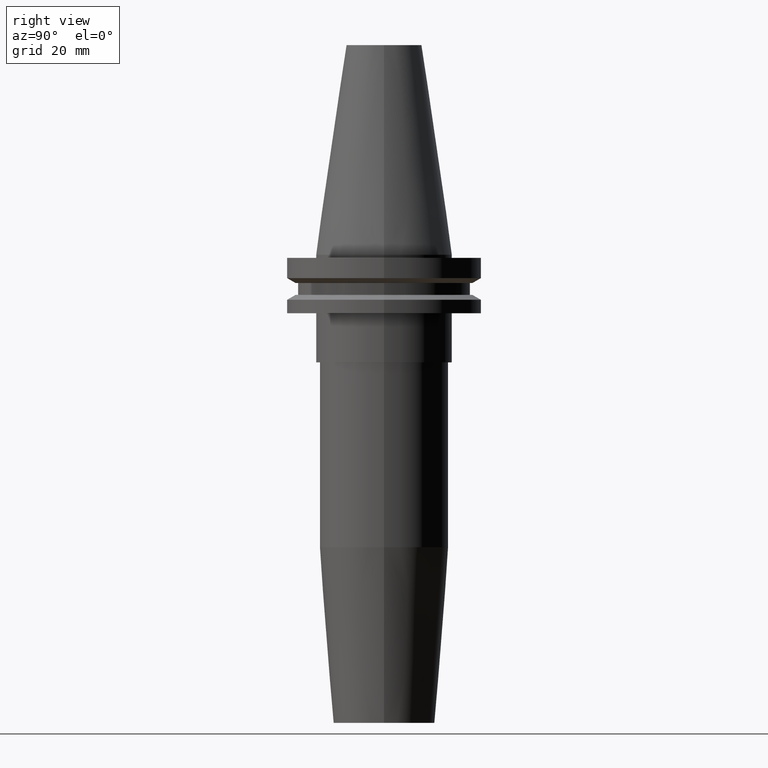
[diagram: clean part render]
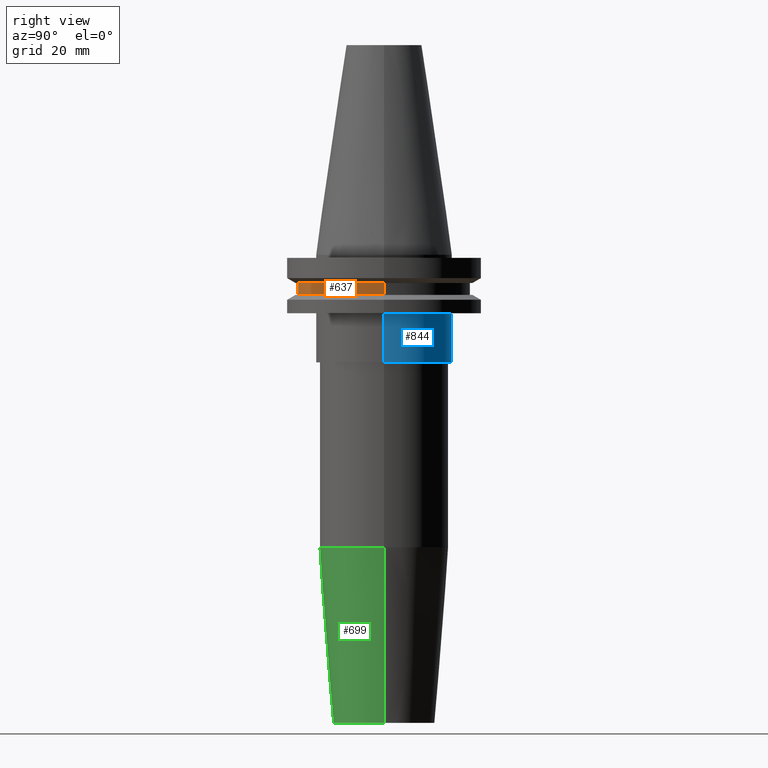
[diagram: same view with three faces highlighted in distinct colors, each labeled with its STEP entity id]
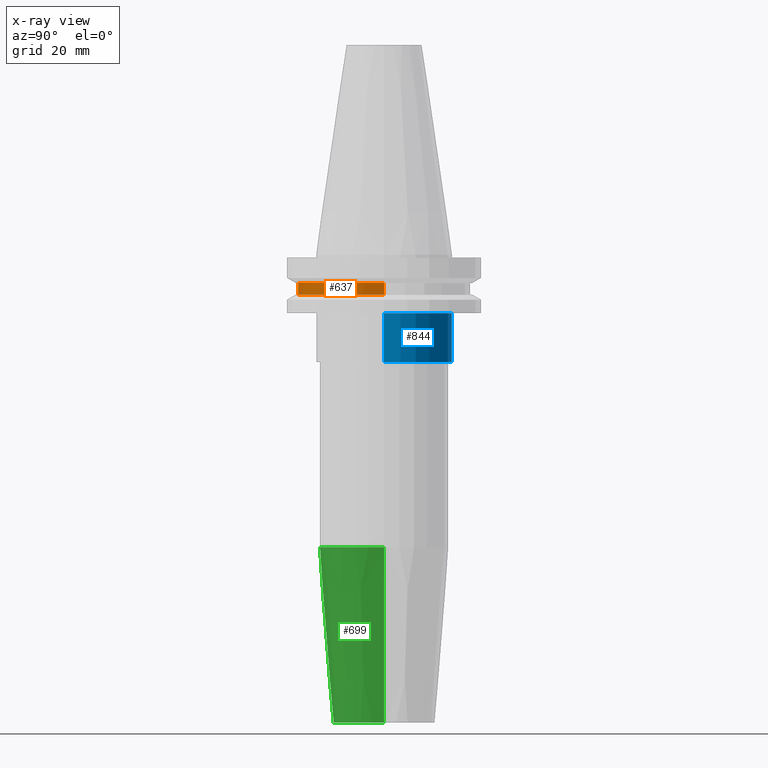
[diagram: x-ray of the same camera — body ghosted, the three highlighted faces saturated]
A machine part, right view with three faces highlighted in distinct colors.
The next image is the same camera in x-ray (body ghosted, the three faces saturated) — at least one of them is partly hidden behind the body in this view.
Their STEP definitions:

[orange] entity #637 — the highlighted cylindrical surface (partial cylindrical patch) has radius 28.18 mm, axis along (-0, -0, 1).
#1 = DIRECTION ( 'NONE',  ( -0.000000000000000000, -0.000000000000000000, 1.000000000000000000 ) ) ;
#6 = CYLINDRICAL_SURFACE ( 'NONE', #172, 28.17999999999999972 ) ;
#13 = CARTESIAN_POINT ( 'NONE',  ( 0.000000000000000000, 0.000000000000000000, 68.25000000000000000 ) ) ;
#14 = EDGE_LOOP ( 'NONE', ( #426, #348, #553, #271 ) ) ;
#122 = CARTESIAN_POINT ( 'NONE',  ( 28.17999999999999972, 0.000000000000000000, 68.25000000000000000 ) ) ;
#123 = VECTOR ( 'NONE', #1, 1000.000000000000000 ) ;
#130 = FACE_OUTER_BOUND ( 'NONE', #14, .T. ) ;
#140 = DIRECTION ( 'NONE',  ( -0.000000000000000000, -0.000000000000000000, 1.000000000000000000 ) ) ;
#172 = AXIS2_PLACEMENT_3D ( 'NONE', #13, #140, #619 ) ;
#220 = VERTEX_POINT ( 'NONE', #650 ) ;
#255 = AXIS2_PLACEMENT_3D ( 'NONE', #557, #678, #274 ) ;
#265 = CIRCLE ( 'NONE', #255, 28.17999999999999972 ) ;
#271 = ORIENTED_EDGE ( 'NONE', *, *, #542, .F. ) ;
#274 = DIRECTION ( 'NONE',  ( 1.000000000000000000, 0.000000000000000000, 0.000000000000000000 ) ) ;
#316 = DIRECTION ( 'NONE',  ( -0.000000000000000000, -0.000000000000000000, 1.000000000000000000 ) ) ;
#326 = EDGE_CURVE ( 'NONE', #757, #220, #661, .T. ) ;
#348 = ORIENTED_EDGE ( 'NONE', *, *, #326, .T. ) ;
#386 = CARTESIAN_POINT ( 'NONE',  ( 0.000000000000000000, 0.000000000000000000, -13.05499999999999794 ) ) ;
#426 = ORIENTED_EDGE ( 'NONE', *, *, #766, .F. ) ;
#446 = VERTEX_POINT ( 'NONE', #729 ) ;
#497 = EDGE_CURVE ( 'NONE', #220, #446, #731, .T. ) ;
#542 = EDGE_CURVE ( 'NONE', #691, #446, #265, .T. ) ;
#553 = ORIENTED_EDGE ( 'NONE', *, *, #497, .T. ) ;
#557 = CARTESIAN_POINT ( 'NONE',  ( 0.000000000000000000, 0.000000000000000000, -9.204999999999991189 ) ) ;
#563 = LINE ( 'NONE', #808, #837 ) ;
#586 = DIRECTION ( 'NONE',  ( 1.000000000000000000, 0.000000000000000000, 0.000000000000000000 ) ) ;
#619 = DIRECTION ( 'NONE',  ( 1.000000000000000000, 0.000000000000000000, 0.000000000000000000 ) ) ;
#629 = CARTESIAN_POINT ( 'NONE',  ( -28.17999999999999972, 3.451054679997241634E-15, -9.204999999999991189 ) ) ;
#637 = ADVANCED_FACE ( 'NONE', ( #130 ), #6, .T. ) ;
#650 = CARTESIAN_POINT ( 'NONE',  ( 28.17999999999999972, 0.000000000000000000, -13.05499999999999794 ) ) ;
#661 = CIRCLE ( 'NONE', #706, 28.17999999999999972 ) ;
#678 = DIRECTION ( 'NONE',  ( -0.000000000000000000, -0.000000000000000000, 1.000000000000000000 ) ) ;
#691 = VERTEX_POINT ( 'NONE', #629 ) ;
#706 = AXIS2_PLACEMENT_3D ( 'NONE', #386, #316, #586 ) ;
#729 = CARTESIAN_POINT ( 'NONE',  ( 28.17999999999999972, 0.000000000000000000, -9.204999999999991189 ) ) ;
#731 = LINE ( 'NONE', #122, #123 ) ;
#753 = CARTESIAN_POINT ( 'NONE',  ( -28.17999999999999972, 3.451054679997241634E-15, -13.05499999999999794 ) ) ;
#757 = VERTEX_POINT ( 'NONE', #753 ) ;
#759 = DIRECTION ( 'NONE',  ( -0.000000000000000000, -0.000000000000000000, 1.000000000000000000 ) ) ;
#766 = EDGE_CURVE ( 'NONE', #757, #691, #563, .T. ) ;
#808 = CARTESIAN_POINT ( 'NONE',  ( -28.17999999999999972, 3.451054679997241634E-15, 68.25000000000000000 ) ) ;
#837 = VECTOR ( 'NONE', #759, 1000.000000000000000 ) ;

[blue] entity #844 — the highlighted cylindrical surface (partial cylindrical patch) has radius 22.225 mm, axis along (-0, -0, 1).
#21 = CIRCLE ( 'NONE', #433, 22.22500000000000142 ) ;
#35 = CARTESIAN_POINT ( 'NONE',  ( 0.000000000000000000, 0.000000000000000000, -19.04999999999999716 ) ) ;
#75 = EDGE_CURVE ( 'NONE', #368, #723, #21, .T. ) ;
#96 = DIRECTION ( 'NONE',  ( -0.000000000000000000, -0.000000000000000000, 1.000000000000000000 ) ) ;
#103 = EDGE_LOOP ( 'NONE', ( #519, #797, #272, #155 ) ) ;
#116 = DIRECTION ( 'NONE',  ( -0.000000000000000000, -0.000000000000000000, 1.000000000000000000 ) ) ;
#136 = EDGE_CURVE ( 'NONE', #736, #368, #291, .T. ) ;
#153 = DIRECTION ( 'NONE',  ( 1.000000000000000000, 0.000000000000000000, 0.000000000000000000 ) ) ;
#155 = ORIENTED_EDGE ( 'NONE', *, *, #136, .F. ) ;
#185 = CYLINDRICAL_SURFACE ( 'NONE', #276, 22.22500000000000142 ) ;
#196 = VECTOR ( 'NONE', #722, 1000.000000000000000 ) ;
#217 = CARTESIAN_POINT ( 'NONE',  ( 0.000000000000000000, 0.000000000000000000, -35.04999999999999716 ) ) ;
#232 = CARTESIAN_POINT ( 'NONE',  ( -22.22500000000000142, 2.721777511104992849E-15, -19.04999999999999716 ) ) ;
#242 = VECTOR ( 'NONE', #96, 1000.000000000000000 ) ;
#272 = ORIENTED_EDGE ( 'NONE', *, *, #75, .F. ) ;
#276 = AXIS2_PLACEMENT_3D ( 'NONE', #471, #116, #588 ) ;
#291 = LINE ( 'NONE', #641, #242 ) ;
#304 = DIRECTION ( 'NONE',  ( -0.000000000000000000, -0.000000000000000000, 1.000000000000000000 ) ) ;
#368 = VERTEX_POINT ( 'NONE', #442 ) ;
#369 = EDGE_CURVE ( 'NONE', #668, #723, #717, .T. ) ;
#427 = CARTESIAN_POINT ( 'NONE',  ( -22.22499999999999787, 2.721777511104992454E-15, -35.04999999999999716 ) ) ;
#433 = AXIS2_PLACEMENT_3D ( 'NONE', #35, #304, #153 ) ;
#442 = CARTESIAN_POINT ( 'NONE',  ( 22.22500000000000142, 0.000000000000000000, -19.04999999999999716 ) ) ;
#471 = CARTESIAN_POINT ( 'NONE',  ( 0.000000000000000000, 0.000000000000000000, 68.25000000000000000 ) ) ;
#502 = AXIS2_PLACEMENT_3D ( 'NONE', #217, #796, #798 ) ;
#519 = ORIENTED_EDGE ( 'NONE', *, *, #556, .T. ) ;
#556 = EDGE_CURVE ( 'NONE', #736, #668, #750, .T. ) ;
#588 = DIRECTION ( 'NONE',  ( 1.000000000000000000, 0.000000000000000000, 0.000000000000000000 ) ) ;
#641 = CARTESIAN_POINT ( 'NONE',  ( 22.22500000000000142, 0.000000000000000000, 68.25000000000000000 ) ) ;
#668 = VERTEX_POINT ( 'NONE', #427 ) ;
#717 = LINE ( 'NONE', #853, #196 ) ;
#722 = DIRECTION ( 'NONE',  ( -0.000000000000000000, -0.000000000000000000, 1.000000000000000000 ) ) ;
#723 = VERTEX_POINT ( 'NONE', #232 ) ;
#736 = VERTEX_POINT ( 'NONE', #748 ) ;
#748 = CARTESIAN_POINT ( 'NONE',  ( 22.22499999999999787, 0.000000000000000000, -35.04999999999999716 ) ) ;
#750 = CIRCLE ( 'NONE', #502, 22.22499999999999787 ) ;
#796 = DIRECTION ( 'NONE',  ( -0.000000000000000000, -0.000000000000000000, 1.000000000000000000 ) ) ;
#797 = ORIENTED_EDGE ( 'NONE', *, *, #369, .T. ) ;
#798 = DIRECTION ( 'NONE',  ( 1.000000000000000000, 0.000000000000000000, 0.000000000000000000 ) ) ;
#844 = ADVANCED_FACE ( 'NONE', ( #846 ), #185, .T. ) ;
#846 = FACE_OUTER_BOUND ( 'NONE', #103, .T. ) ;
#853 = CARTESIAN_POINT ( 'NONE',  ( -22.22500000000000142, 2.721777511104992849E-15, 68.25000000000000000 ) ) ;

[green] entity #699 — the highlighted conical surface has half-angle 4.5 deg.
#20 = CONICAL_SURFACE ( 'NONE', #404, 16.50000000000000000, 0.07853981633973657062 ) ;
#25 = CARTESIAN_POINT ( 'NONE',  ( 0.000000000000000000, 0.000000000000000000, -95.22207868720779800 ) ) ;
#34 = ORIENTED_EDGE ( 'NONE', *, *, #390, .T. ) ;
#51 = DIRECTION ( 'NONE',  ( 1.000000000000000000, 0.000000000000000000, 0.000000000000000000 ) ) ;
#54 = DIRECTION ( 'NONE',  ( -0.07845909572783671404, 9.608468044709101226E-18, 0.9969173337331286300 ) ) ;
#86 = VERTEX_POINT ( 'NONE', #87 ) ;
#87 = CARTESIAN_POINT ( 'NONE',  ( -21.00000000000000000, 2.571758278209441661E-15, -95.22207868720779800 ) ) ;
#114 = LINE ( 'NONE', #787, #679 ) ;
#128 = EDGE_CURVE ( 'NONE', #86, #585, #454, .T. ) ;
#161 = CARTESIAN_POINT ( 'NONE',  ( 16.50000000000000000, 0.000000000000000000, -152.4000000000000057 ) ) ;
#167 = ORIENTED_EDGE ( 'NONE', *, *, #258, .T. ) ;
#175 = VERTEX_POINT ( 'NONE', #161 ) ;
#186 = CIRCLE ( 'NONE', #686, 16.50000000000000000 ) ;
#187 = DIRECTION ( 'NONE',  ( 0.07845909572783671404, 0.000000000000000000, 0.9969173337331286300 ) ) ;
#218 = ORIENTED_EDGE ( 'NONE', *, *, #128, .F. ) ;
#244 = CARTESIAN_POINT ( 'NONE',  ( 0.000000000000000000, 0.000000000000000000, -152.4000000000000057 ) ) ;
#258 = EDGE_CURVE ( 'NONE', #501, #175, #186, .T. ) ;
#262 = AXIS2_PLACEMENT_3D ( 'NONE', #25, #312, #633 ) ;
#309 = FACE_OUTER_BOUND ( 'NONE', #488, .T. ) ;
#312 = DIRECTION ( 'NONE',  ( -0.000000000000000000, -0.000000000000000000, 1.000000000000000000 ) ) ;
#333 = CARTESIAN_POINT ( 'NONE',  ( -16.50000000000000000, 2.020667218593133100E-15, -152.4000000000000057 ) ) ;
#390 = EDGE_CURVE ( 'NONE', #175, #585, #114, .T. ) ;
#404 = AXIS2_PLACEMENT_3D ( 'NONE', #244, #458, #649 ) ;
#430 = EDGE_CURVE ( 'NONE', #501, #86, #656, .T. ) ;
#451 = VECTOR ( 'NONE', #54, 1000.000000000000000 ) ;
#454 = CIRCLE ( 'NONE', #262, 21.00000000000000000 ) ;
#458 = DIRECTION ( 'NONE',  ( -0.000000000000000000, -0.000000000000000000, 1.000000000000000000 ) ) ;
#488 = EDGE_LOOP ( 'NONE', ( #517, #167, #34, #218 ) ) ;
#501 = VERTEX_POINT ( 'NONE', #855 ) ;
#517 = ORIENTED_EDGE ( 'NONE', *, *, #430, .F. ) ;
#528 = CARTESIAN_POINT ( 'NONE',  ( 0.000000000000000000, 0.000000000000000000, -152.4000000000000057 ) ) ;
#576 = DIRECTION ( 'NONE',  ( -0.000000000000000000, -0.000000000000000000, 1.000000000000000000 ) ) ;
#585 = VERTEX_POINT ( 'NONE', #670 ) ;
#633 = DIRECTION ( 'NONE',  ( 1.000000000000000000, 0.000000000000000000, 0.000000000000000000 ) ) ;
#649 = DIRECTION ( 'NONE',  ( 1.000000000000000000, 0.000000000000000000, 0.000000000000000000 ) ) ;
#656 = LINE ( 'NONE', #333, #451 ) ;
#670 = CARTESIAN_POINT ( 'NONE',  ( 21.00000000000000000, 0.000000000000000000, -95.22207868720779800 ) ) ;
#679 = VECTOR ( 'NONE', #187, 1000.000000000000000 ) ;
#686 = AXIS2_PLACEMENT_3D ( 'NONE', #528, #576, #51 ) ;
#699 = ADVANCED_FACE ( 'NONE', ( #309 ), #20, .T. ) ;
#787 = CARTESIAN_POINT ( 'NONE',  ( 16.50000000000000000, 0.000000000000000000, -152.4000000000000057 ) ) ;
#855 = CARTESIAN_POINT ( 'NONE',  ( -16.50000000000000000, 2.296212748401287578E-15, -152.4000000000000057 ) ) ;